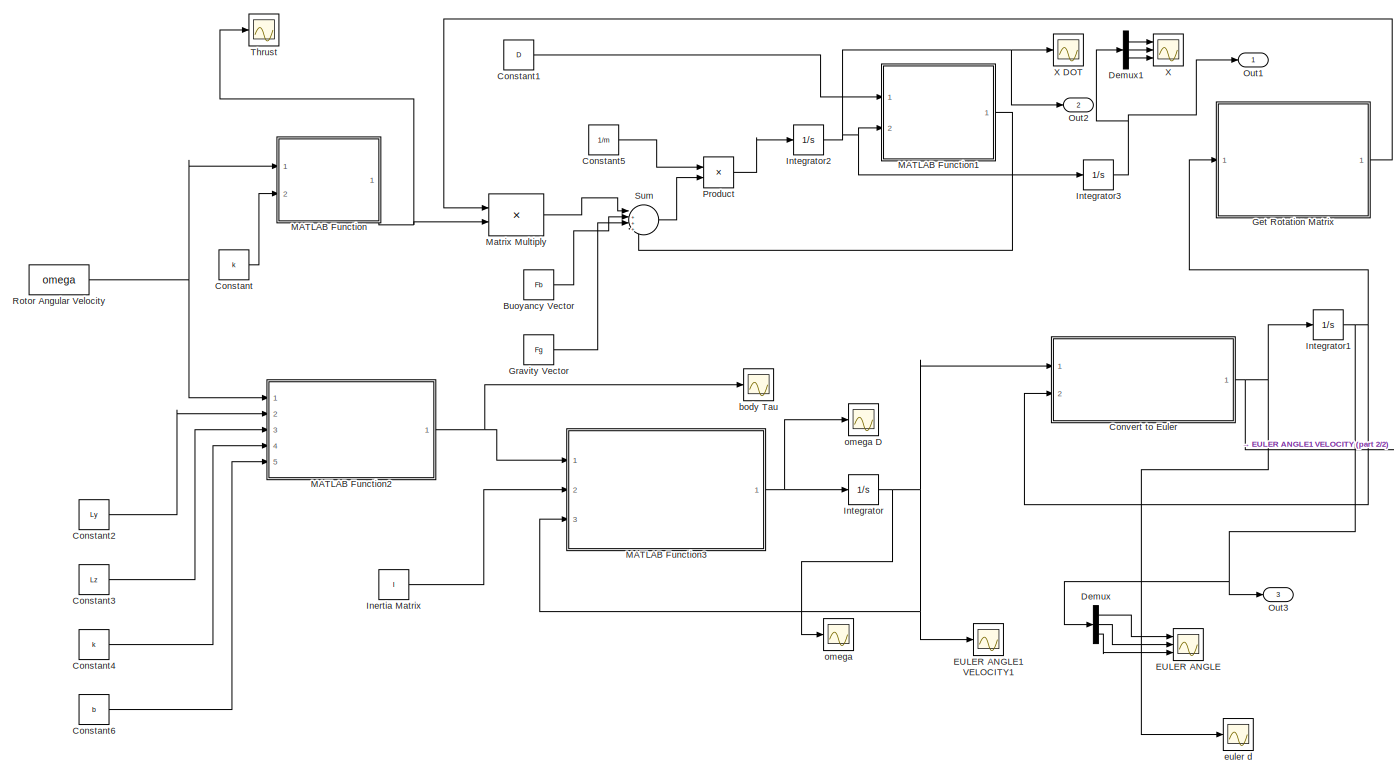
[diagram: root canvas - part 1/2, most of the canvas]
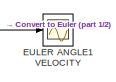
[diagram: root canvas - part 2/2, middle right region]
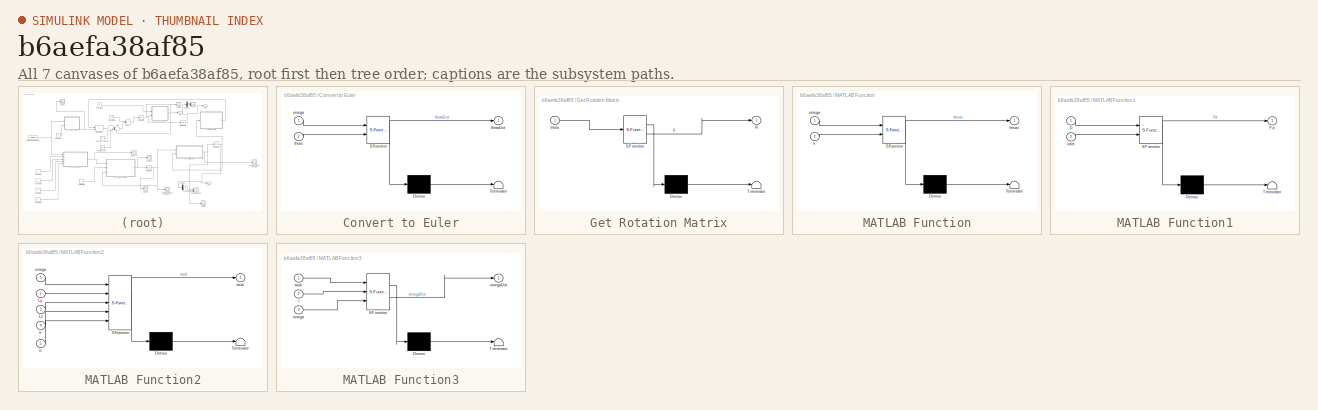
[diagram: thumbnail index - all 7 canvases of the model, root first then tree order]
MODEL slx_b6aefa38af85
KIND model
CONFIG AbsTol = auto
CONFIG EnableMultiTasking = off
CONFIG FixedStep = auto
CONFIG MaxStep = auto
CONFIG MinStep = auto
CONFIG RelTol = 1e-3
CONFIG SampleTimeConstraint = Unconstrained
CONFIG SolverName = VariableStepAuto
CONFIG StartTime = 0.0
CONFIG StopTime = 3
BLOCK [Constant] Buoyancy Vector
  Value = Fb
  VectorParams1D = off
BLOCK [Constant] Constant
  Value = k
  VectorParams1D = off
BLOCK [Constant] Constant1
  Value = D
  VectorParams1D = off
BLOCK [Constant] Constant2
  Value = Ly
BLOCK [Constant] Constant3
  Value = Lz
BLOCK [Constant] Constant4
  Value = k
BLOCK [Constant] Constant5
  Value = 1/m
BLOCK [Constant] Constant6
  Value = b
BLOCK [SubSystem] Convert to Euler
  ErrorFcn = Stateflow.Translate.translate
  PermitHierarchicalResolution = ExplicitOnly
  Ports = [2, 1]
  RequestExecContextInheritance = off
  SFBlockType = MATLAB Function
  TreatAsAtomicUnit = on
BLOCK [Demux] Convert to Euler/ Demux 
  Outputs = 1
  Ports = [1, 1]
BLOCK [S-Function] Convert to Euler/ SFunction 
  EnableBusSupport = on
  FunctionName = sf_sfun
  PortCounts = [2 2]
  Ports = [2, 2]
  SFcnIsStateOwnerBlock = off
  SFunctionDeploymentMode = off
  Tag = Stateflow S-Function 5
BLOCK [Terminator] Convert to Euler/ Terminator 
BLOCK [Inport] Convert to Euler/omega
BLOCK [Inport] Convert to Euler/theta
  Port = 2
BLOCK [Outport] Convert to Euler/thetaDot
BLOCK [Demux] Demux
  Outputs = 3
  Ports = [1, 3]
BLOCK [Demux] Demux1
  Outputs = 3
  Ports = [1, 3]
BLOCK [Scope] EULER ANGLE
  Floating = off
  NumInputPorts = 3
  Ports = [3]
  ScopeSpecificationString = Simulink.scopes.TimeScopeBlockCfg('CurrentConfiguration', extmgr.ConfigurationSet(extmgr.Configuration('Core','General UI',true),extmgr.Configuration('Core','Source UI',true),extmgr.Configuration('Sources','WiredSimulink',true,'DataLoggingVariableName','ScopeData2'),extmgr.Configuration('Visuals','Time Domain',true,'SerializedDisplays',{struct('MinYLimReal','-28.72496','MaxYLimReal','27.75298','YL...<+1504ch>
BLOCK [Scope] EULER ANGLE1 VELOCITY
  Floating = off
  NumInputPorts = 1
  Ports = [1]
  ScopeSpecificationString = Simulink.scopes.TimeScopeBlockCfg('CurrentConfiguration', extmgr.ConfigurationSet(extmgr.Configuration('Core','General UI',true),extmgr.Configuration('Core','Source UI',true),extmgr.Configuration('Sources','WiredSimulink',true,'DataLoggingVariableName','ScopeData3'),extmgr.Configuration('Visuals','Time Domain',true,'SerializedDisplays',{struct('MinYLimReal','-1.00000','MaxYLimReal','1.00000','YLab...<+1448ch>
BLOCK [Scope] EULER ANGLE1 VELOCITY1
  Floating = off
  NumInputPorts = 1
  Ports = [1]
  ScopeSpecificationString = Simulink.scopes.TimeScopeBlockCfg('CurrentConfiguration', extmgr.ConfigurationSet(extmgr.Configuration('Core','General UI',true),extmgr.Configuration('Core','Source UI',true),extmgr.Configuration('Sources','WiredSimulink',true,'DataLoggingVariableName','ScopeData4'),extmgr.Configuration('Visuals','Time Domain',true,'SerializedDisplays',{struct('MinYLimReal','-83333333333.33333','MaxYLimReal','7500...<+1512ch>
BLOCK [SubSystem] Get Rotation Matrix
  ErrorFcn = Stateflow.Translate.translate
  PermitHierarchicalResolution = ExplicitOnly
  Ports = [1, 1]
  RequestExecContextInheritance = off
  SFBlockType = MATLAB Function
  TreatAsAtomicUnit = on
BLOCK [Demux] Get Rotation Matrix/ Demux 
  Outputs = 1
  Ports = [1, 1]
BLOCK [S-Function] Get Rotation Matrix/ SFunction 
  EnableBusSupport = on
  FunctionName = sf_sfun
  PortCounts = [1 2]
  Ports = [1, 2]
  SFcnIsStateOwnerBlock = off
  SFunctionDeploymentMode = off
  Tag = Stateflow S-Function 6
BLOCK [Terminator] Get Rotation Matrix/ Terminator 
BLOCK [Outport] Get Rotation Matrix/R
BLOCK [Inport] Get Rotation Matrix/theta
BLOCK [Constant] Gravity Vector
  Value = Fg
  VectorParams1D = off
BLOCK [Constant] Inertia Matrix
  Value = I
  VectorParams1D = off
BLOCK [Integrator] Integrator
  InitialCondition = [0;0;0]
  Ports = [1, 1]
BLOCK [Integrator] Integrator1
  InitialCondition = [0;0;0]
  Ports = [1, 1]
BLOCK [Integrator] Integrator2
  InitialCondition = [0;0;0]
  Ports = [1, 1]
BLOCK [Integrator] Integrator3
  InitialCondition = [0;0;0]
  Ports = [1, 1]
BLOCK [SubSystem] MATLAB Function
  ErrorFcn = Stateflow.Translate.translate
  PermitHierarchicalResolution = ExplicitOnly
  Ports = [2, 1]
  RequestExecContextInheritance = off
  SFBlockType = MATLAB Function
  TreatAsAtomicUnit = on
BLOCK [Demux] MATLAB Function/ Demux 
  Outputs = 1
  Ports = [1, 1]
BLOCK [S-Function] MATLAB Function/ SFunction 
  EnableBusSupport = on
  FunctionName = sf_sfun
  PortCounts = [2 2]
  Ports = [2, 2]
  SFcnIsStateOwnerBlock = off
  SFunctionDeploymentMode = off
  Tag = Stateflow S-Function 2
BLOCK [Terminator] MATLAB Function/ Terminator 
BLOCK [Inport] MATLAB Function/k
  Port = 2
BLOCK [Inport] MATLAB Function/omega
BLOCK [Outport] MATLAB Function/thrust
BLOCK [SubSystem] MATLAB Function1
  ErrorFcn = Stateflow.Translate.translate
  PermitHierarchicalResolution = ExplicitOnly
  Ports = [2, 1]
  RequestExecContextInheritance = off
  SFBlockType = MATLAB Function
  TreatAsAtomicUnit = on
BLOCK [Demux] MATLAB Function1/ Demux 
  Outputs = 1
  Ports = [1, 1]
BLOCK [S-Function] MATLAB Function1/ SFunction 
  EnableBusSupport = on
  FunctionName = sf_sfun
  PortCounts = [2 2]
  Ports = [2, 2]
  SFcnIsStateOwnerBlock = off
  SFunctionDeploymentMode = off
  Tag = Stateflow S-Function 1
BLOCK [Terminator] MATLAB Function1/ Terminator 
BLOCK [Inport] MATLAB Function1/D
BLOCK [Outport] MATLAB Function1/Fd
BLOCK [Inport] MATLAB Function1/xdot
  Port = 2
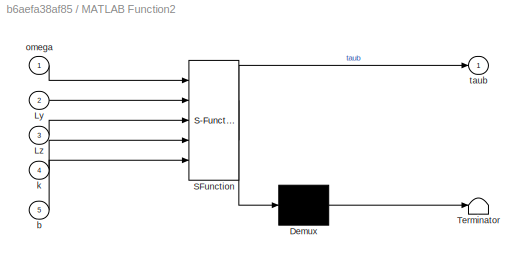
BLOCK [SubSystem] MATLAB Function2
  ErrorFcn = Stateflow.Translate.translate
  PermitHierarchicalResolution = ExplicitOnly
  Ports = [5, 1]
  RequestExecContextInheritance = off
  SFBlockType = MATLAB Function
  TreatAsAtomicUnit = on
BLOCK [Demux] MATLAB Function2/ Demux 
  Outputs = 1
  Ports = [1, 1]
BLOCK [S-Function] MATLAB Function2/ SFunction 
  EnableBusSupport = on
  FunctionName = sf_sfun
  PortCounts = [5 2]
  Ports = [5, 2]
  SFcnIsStateOwnerBlock = off
  SFunctionDeploymentMode = off
  Tag = Stateflow S-Function 3
BLOCK [Terminator] MATLAB Function2/ Terminator 
BLOCK [Inport] MATLAB Function2/Ly
  Port = 2
BLOCK [Inport] MATLAB Function2/Lz
  Port = 3
BLOCK [Inport] MATLAB Function2/b
  Port = 5
BLOCK [Inport] MATLAB Function2/k
  Port = 4
BLOCK [Inport] MATLAB Function2/omega
BLOCK [Outport] MATLAB Function2/taub
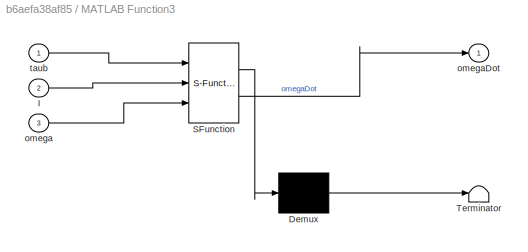
BLOCK [SubSystem] MATLAB Function3
  ErrorFcn = Stateflow.Translate.translate
  PermitHierarchicalResolution = ExplicitOnly
  Ports = [3, 1]
  RequestExecContextInheritance = off
  SFBlockType = MATLAB Function
  TreatAsAtomicUnit = on
BLOCK [Demux] MATLAB Function3/ Demux 
  Outputs = 1
  Ports = [1, 1]
BLOCK [S-Function] MATLAB Function3/ SFunction 
  EnableBusSupport = on
  FunctionName = sf_sfun
  PortCounts = [3 2]
  Ports = [3, 2]
  SFcnIsStateOwnerBlock = off
  SFunctionDeploymentMode = off
  Tag = Stateflow S-Function 4
BLOCK [Terminator] MATLAB Function3/ Terminator 
BLOCK [Inport] MATLAB Function3/I
  Port = 2
BLOCK [Inport] MATLAB Function3/omega
  Port = 3
BLOCK [Outport] MATLAB Function3/omegaDot
BLOCK [Inport] MATLAB Function3/taub
BLOCK [Product] Matrix Multiply
  Multiplication = Matrix(*)
  Ports = [2, 1]
BLOCK [Outport] Out1
BLOCK [Outport] Out2
  Port = 2
BLOCK [Outport] Out3
  Port = 3
BLOCK [Product] Product
  Ports = [2, 1]
BLOCK [Constant] Rotor Angular Velocity
  Value = omega
  VectorParams1D = off
BLOCK [Sum] Sum
  Inputs = |++++
  Ports = [4, 1]
BLOCK [Scope] Thrust
  Floating = off
  NumInputPorts = 1
  Ports = [1]
  ScopeSpecificationString = Simulink.scopes.TimeScopeBlockCfg('CurrentConfiguration', extmgr.ConfigurationSet(extmgr.Configuration('Core','General UI',true),extmgr.Configuration('Core','Source UI',true),extmgr.Configuration('Sources','WiredSimulink',true,'DataLoggingVariableName','ScopeData1'),extmgr.Configuration('Visuals','Time Domain',true,'SerializedDisplays',{struct('MinYLimReal','-126.25','MaxYLimReal','1136.25','YLabe...<+1446ch>
BLOCK [Scope] X 
  Floating = off
  NumInputPorts = 3
  Ports = [3]
  ScopeSpecificationString = Simulink.scopes.TimeScopeBlockCfg('CurrentConfiguration', extmgr.ConfigurationSet(extmgr.Configuration('Core','General UI',true),extmgr.Configuration('Core','Source UI',true),extmgr.Configuration('Sources','WiredSimulink',true,'DataLoggingVariableName','ScopeData1'),extmgr.Configuration('Visuals','Time Domain',true,'SerializedDisplays',{struct('MinYLimReal','-0.58484','MaxYLimReal','0.36303','YLab...<+1507ch>
BLOCK [Scope] X DOT
  Floating = off
  NumInputPorts = 1
  Ports = [1]
  ScopeSpecificationString = Simulink.scopes.TimeScopeBlockCfg('CurrentConfiguration', extmgr.ConfigurationSet(extmgr.Configuration('Core','General UI',true),extmgr.Configuration('Core','Source UI',true),extmgr.Configuration('Sources','WiredSimulink',true),extmgr.Configuration('Visuals','Time Domain',true,'SerializedDisplays',{struct('MinYLimReal','-9.8404','MaxYLimReal','9.52807','YLabelReal','','MinYLimMag','0.00000','MaxYL...<+1390ch>
BLOCK [Scope] body Tau
  Floating = off
  NumInputPorts = 1
  Ports = [1]
  ScopeSpecificationString = Simulink.scopes.TimeScopeBlockCfg('CurrentConfiguration', extmgr.ConfigurationSet(extmgr.Configuration('Core','General UI',true),extmgr.Configuration('Core','Source UI',true),extmgr.Configuration('Sources','WiredSimulink',true,'DataLoggingVariableName','ScopeData2'),extmgr.Configuration('Visuals','Time Domain',true,'SerializedDisplays',{struct('MinYLimReal','-25000.00000','MaxYLimReal','225000.000...<+1483ch>
BLOCK [Scope] euler d
  Floating = off
  NumInputPorts = 1
  Ports = [1]
  ScopeSpecificationString = Simulink.scopes.TimeScopeBlockCfg('CurrentConfiguration', extmgr.ConfigurationSet(extmgr.Configuration('Core','General UI',true),extmgr.Configuration('Core','Source UI',true),extmgr.Configuration('Sources','WiredSimulink',true,'DataLoggingVariableName','ScopeData5'),extmgr.Configuration('Visuals','Time Domain',true,'SerializedDisplays',{struct('MinYLimReal','-1.00000','MaxYLimReal','1.00000','YLab...<+1449ch>
BLOCK [Scope] omega
  Floating = off
  NumInputPorts = 1
  Ports = [1]
  ScopeSpecificationString = Simulink.scopes.TimeScopeBlockCfg('CurrentConfiguration', extmgr.ConfigurationSet(extmgr.Configuration('Core','General UI',true),extmgr.Configuration('Core','Source UI',true),extmgr.Configuration('Sources','WiredSimulink',true,'DataLoggingVariableName','ScopeData4'),extmgr.Configuration('Visuals','Time Domain',true,'SerializedDisplays',{struct('MinYLimReal','-83333333333.33333','MaxYLimReal','7500...<+1513ch>
BLOCK [Scope] omega D
  Floating = off
  NumInputPorts = 1
  Ports = [1]
  ScopeSpecificationString = Simulink.scopes.TimeScopeBlockCfg('CurrentConfiguration', extmgr.ConfigurationSet(extmgr.Configuration('Core','General UI',true),extmgr.Configuration('Core','Source UI',true),extmgr.Configuration('Sources','WiredSimulink',true,'DataLoggingVariableName','ScopeData3'),extmgr.Configuration('Visuals','Time Domain',true,'SerializedDisplays',{struct('MinYLimReal','-833333333.33333','MaxYLimReal','750000...<+1515ch>
LINE Buoyancy Vector:1 -> Sum:2
LINE Constant1:1 -> MATLAB Function1:1
LINE Constant2:1 -> MATLAB Function2:2
LINE Constant3:1 -> MATLAB Function2:3
LINE Constant4:1 -> MATLAB Function2:4
LINE Constant5:1 -> Product:1
LINE Constant6:1 -> MATLAB Function2:5
LINE Constant:1 -> MATLAB Function:2
NET Convert to Euler:1 -> EULER ANGLE1 VELOCITY:1, Integrator1:1, euler d:1
LINE Demux1:1 -> X :1
LINE Demux1:2 -> X :2
LINE Demux1:3 -> X :3
LINE Demux:1 -> EULER ANGLE:1
LINE Demux:2 -> EULER ANGLE:2
LINE Demux:3 -> EULER ANGLE:3
LINE Get Rotation Matrix:1 -> Matrix Multiply:1
LINE Gravity Vector:1 -> Sum:3
LINE Inertia Matrix:1 -> MATLAB Function3:2
NET Integrator1:1 -> Convert to Euler:2, Demux:1, Get Rotation Matrix:1, Out3:1
NET Integrator2:1 -> Integrator3:1, MATLAB Function1:2, Out2:1, X DOT:1
NET Integrator3:1 -> Demux1:1, Out1:1
NET Integrator:1 -> Convert to Euler:1, EULER ANGLE1 VELOCITY1:1, MATLAB Function3:3, omega:1
LINE MATLAB Function1:1 -> Sum:4
NET MATLAB Function2:1 -> MATLAB Function3:1, body Tau:1
NET MATLAB Function3:1 -> Integrator:1, omega D:1
NET MATLAB Function:1 -> Matrix Multiply:2, Thrust:1
LINE Matrix Multiply:1 -> Sum:1
LINE Product:1 -> Integrator2:1
NET Rotor Angular Velocity:1 -> MATLAB Function2:1, MATLAB Function:1
LINE Sum:1 -> Product:2
note: NET lines group one-source signal fan-out (src -> all destinations, sorted); 1:1 wires keep LINE
CHART MATLAB Function1 states=1 transitions=1
  STATE_LABEL 'eML_blk_kernel()'
  STATE_LABEL 'SCRIPT:\nfunction Fd = calcDamping(D, xdot)\n\n    Fd = [-D(1,1)*xdot(1); -D(2,2)*xdot(2); -D(3,3)*xdot(3)];\n\n'
CHART MATLAB Function states=1 transitions=1
  STATE_LABEL 'eML_blk_kernel()'
  STATE_LABEL 'SCRIPT:\nfunction thrust = calcThrust(omega, k)\n\n    thrust = k * [omega(1)^2+omega(2)^2; 0; 0];\n'
CHART MATLAB Function2 states=1 transitions=1
  STATE_LABEL 'eML_blk_kernel()'
  STATE_LABEL 'SCRIPT:\nfunction taub = calcTorque(omega, Ly, Lz, k, b)\ntaub = [b * (omega(1)^2 - omega(2)^2);\n    Lz * k * (- omega(1)^2 - omega(2)^2);\n    Ly * k * (omega(1)^2 - omega(2)^2)\n    ];\n'
CHART MATLAB Function3 states=1 transitions=1
  STATE_LABEL 'eML_blk_kernel()'
  STATE_LABEL 'SCRIPT:\nfunction omegaDot = calcOmegaDot(taub, I, omega)\n    ti = [taub(1) * (1/I(1,1)); \n        taub(2) * (1/I(2,2));\n        taub(3) * (1/I(3,3))\n        ];\n    tw = [( ( I(2,2) - I(3,3) ) /I(1,1) ) * omega(2) * omega(3);\n        ( ( I(3,3) - I(1,1) ) / I(2,2) ) * omega(1) * omega(3);\n        ( (I(1,1) - I(2,2) ) / I(3,3) ) * omega(1) * omega(2)\n        ];\n    omegaDot = ti - tw;\n'
CHART Convert to Euler states=1 transitions=1
  STATE_LABEL 'eML_blk_kernel()'
  STATE_LABEL 'SCRIPT:\nfunction thetaDot = getEulerAngle(omega, theta)\n    phi = theta(1);\n    thetaY = theta(2);\n    R = [1, 0 , -sin(thetaY);\n        0, cos(phi), cos(thetaY)* sin(phi);\n        0, -sin(phi), cos(thetaY) * cos(phi)];\n   thetaDot = pinv(R) * omega;\n\n\n\n'
CHART Get Rotation Matrix states=1 transitions=1
  STATE_LABEL 'eML_blk_kernel()'
  STATE_LABEL 'SCRIPT:\nfunction R = getRotationMatrix(theta)\n    omega = theta(1);\n    thetay = theta(2);\n    phi = theta(3);\n    R = [cos(phi)*cos(thetay), cos(phi)*sin(omega)*sin(thetay) - cos(omega)*sin(phi), sin(omega)*sin(phi) + cos(omega)*cos(phi)*sin(thetay); \n        cos(thetay)*sin(phi), cos(omega)*cos(phi) + sin(omega)*sin(phi)*sin(thetay), cos(omega)*sin(phi)*sin(thetay) - cos(phi)*sin(omega); \n      ...<+426ch>'
CHART  states=0 transitions=0
CHART  states=0 transitions=0
CHART  states=0 transitions=0
CHART  states=0 transitions=0
CHART  states=0 transitions=0
CHART  states=0 transitions=0
